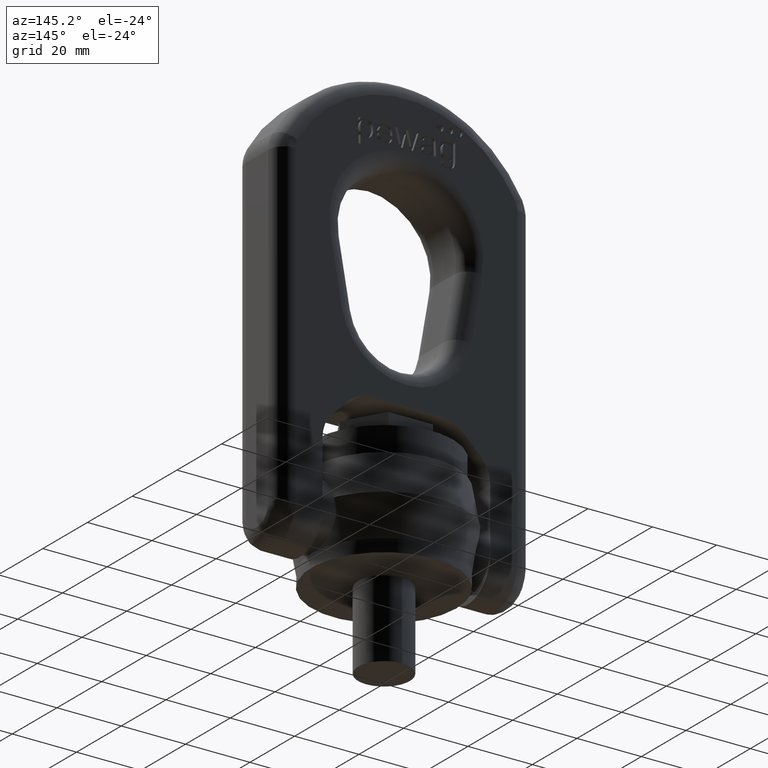
[diagram: clean part render]
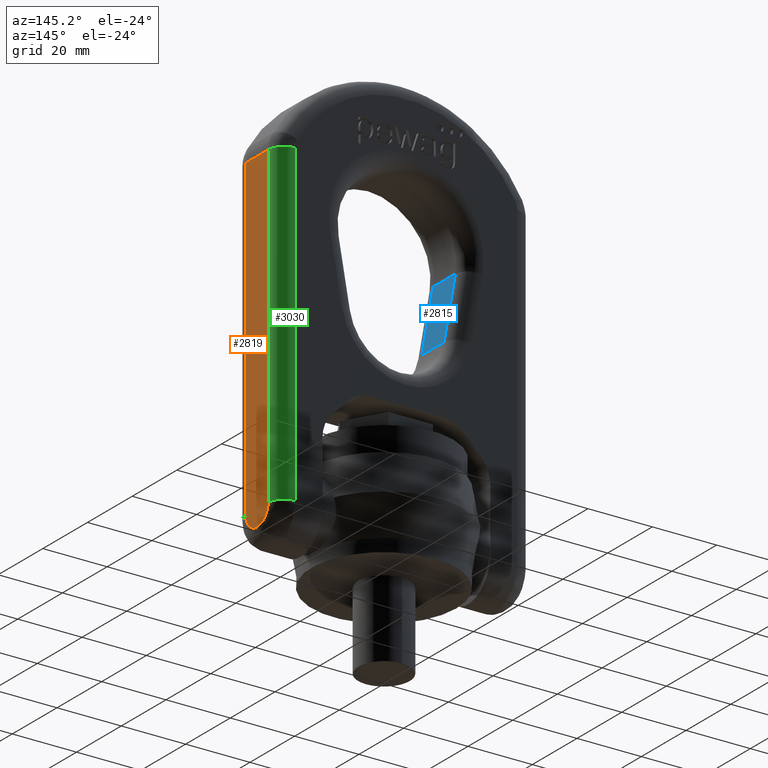
[diagram: same view with three faces highlighted in distinct colors, each labeled with its STEP entity id]
A machine part, auxiliary view with three faces highlighted in distinct colors.
Their STEP definitions:

[orange] entity #2819 — the highlighted planar face has unit normal (-1, 0, -0).
#1867=LINE('',#7754,#2175);
#1868=LINE('',#7756,#2176);
#1869=LINE('',#7758,#2177);
#2175=VECTOR('',#6354,1.);
#2176=VECTOR('',#6355,1.);
#2177=VECTOR('',#6356,1.);
#2459=FACE_OUTER_BOUND('',#3197,.T.);
#2690=PLANE('',#5903);
#2819=ADVANCED_FACE('',(#2459),#2690,.F.);
#3197=EDGE_LOOP('',(#3735,#3736,#3737,#3738));
#3735=ORIENTED_EDGE('',*,*,#5364,.T.);
#3736=ORIENTED_EDGE('',*,*,#5365,.T.);
#3737=ORIENTED_EDGE('',*,*,#5366,.T.);
#3738=ORIENTED_EDGE('',*,*,#5367,.T.);
#4923=VERTEX_POINT('',#7752);
#4924=VERTEX_POINT('',#7753);
#4925=VERTEX_POINT('',#7755);
#4926=VERTEX_POINT('',#7757);
#5364=EDGE_CURVE('',#4923,#4924,#5790,.T.);
#5365=EDGE_CURVE('',#4924,#4925,#1867,.T.);
#5366=EDGE_CURVE('',#4925,#4926,#1868,.T.);
#5367=EDGE_CURVE('',#4926,#4923,#1869,.T.);
#5790=CIRCLE('',#5902,4.99999999999995);
#5902=AXIS2_PLACEMENT_3D('',#7751,#6352,#6353);
#5903=AXIS2_PLACEMENT_3D('',#7759,#6357,#6358);
#6352=DIRECTION('',(1.,0.,1.87537673078574E-16));
#6353=DIRECTION('',(0.,0.,1.));
#6354=DIRECTION('',(-1.87537673078574E-16,4.39384026378438E-31,1.));
#6355=DIRECTION('',(0.,-1.,0.));
#6356=DIRECTION('',(1.87537673078574E-16,0.,-1.));
#6357=DIRECTION('',(-1.,0.,-1.87537673078574E-16));
#6358=DIRECTION('',(-1.87350135405495E-16,0.,1.));
#7751=CARTESIAN_POINT('',(39.5,-4.09636284105662E-14,12.));
#7752=CARTESIAN_POINT('',(39.5,-5.,12.));
#7753=CARTESIAN_POINT('',(39.5,4.99999999999991,12.));
#7754=CARTESIAN_POINT('',(39.5,4.99999999999992,110.597669259971));
#7755=CARTESIAN_POINT('',(39.5,4.99999999999992,110.597669259971));
#7756=CARTESIAN_POINT('',(39.5,-10.,110.597669259971));
#7757=CARTESIAN_POINT('',(39.5,-5.,110.597669259971));
#7758=CARTESIAN_POINT('',(39.5,-5.,12.));
#7759=CARTESIAN_POINT('',(39.5,-10.,2.));

[blue] entity #2815 — the highlighted planar face has unit normal (-0.9848, 0, -0.1736).
#1856=LINE('',#7721,#2164);
#1857=LINE('',#7724,#2165);
#1858=LINE('',#7726,#2166);
#1859=LINE('',#7728,#2167);
#2164=VECTOR('',#6327,1.);
#2165=VECTOR('',#6328,1.);
#2166=VECTOR('',#6329,1.);
#2167=VECTOR('',#6330,1.);
#2455=FACE_OUTER_BOUND('',#3193,.T.);
#2687=PLANE('',#5895);
#2815=ADVANCED_FACE('',(#2455),#2687,.F.);
#3193=EDGE_LOOP('',(#3719,#3720,#3721,#3722));
#3719=ORIENTED_EDGE('',*,*,#5350,.T.);
#3720=ORIENTED_EDGE('',*,*,#5351,.T.);
#3721=ORIENTED_EDGE('',*,*,#5352,.F.);
#3722=ORIENTED_EDGE('',*,*,#5353,.T.);
#4911=VERTEX_POINT('',#7722);
#4912=VERTEX_POINT('',#7723);
#4913=VERTEX_POINT('',#7725);
#4914=VERTEX_POINT('',#7727);
#5350=EDGE_CURVE('',#4911,#4912,#1856,.T.);
#5351=EDGE_CURVE('',#4912,#4913,#1857,.T.);
#5352=EDGE_CURVE('',#4914,#4913,#1858,.T.);
#5353=EDGE_CURVE('',#4914,#4911,#1859,.T.);
#5895=AXIS2_PLACEMENT_3D('',#7729,#6331,#6332);
#6327=DIRECTION('',(0.,1.,0.));
#6328=DIRECTION('',(-0.17364817766693,4.0684217855581E-16,0.984807753012208));
#6329=DIRECTION('',(0.,1.,0.));
#6330=DIRECTION('',(0.17364817766693,0.,-0.984807753012208));
#6331=DIRECTION('',(-0.984807753012208,0.,-0.17364817766693));
#6332=DIRECTION('',(-0.17364817766693,0.,0.984807753012208));
#7721=CARTESIAN_POINT('',(-15.1932680343379,-10.,70.7486656039905));
#7722=CARTESIAN_POINT('',(-15.1932680343379,-5.,70.7486656039905));
#7723=CARTESIAN_POINT('',(-15.1932680343379,5.00000000000005,70.7486656039905));
#7724=CARTESIAN_POINT('',(-18.711347307232,5.00000000000006,90.7006846243283));
#7725=CARTESIAN_POINT('',(-18.711347307232,5.00000000000006,90.7006846243283));
#7726=CARTESIAN_POINT('',(-18.711347307232,-10.,90.7006846243283));
#7727=CARTESIAN_POINT('',(-18.711347307232,-5.,90.7006846243283));
#7728=CARTESIAN_POINT('',(-15.1932680343379,-5.,70.7486656039905));
#7729=CARTESIAN_POINT('',(-15.1932680343379,-10.,70.7486656039905));

[green] entity #3030 — the highlighted cylindrical surface (edge-blend (fillet) strip) has radius 5 mm, axis along (-0, 0, 1).
#1817=LINE('',#7406,#2125);
#1867=LINE('',#7754,#2175);
#2125=VECTOR('',#6268,1.);
#2175=VECTOR('',#6354,1.);
#2655=FACE_OUTER_BOUND('',#3423,.T.);
#3030=ADVANCED_FACE('',(#2655),#3064,.T.);
#3064=CYLINDRICAL_SURFACE('',#6047,5.);
#3423=EDGE_LOOP('',(#4657,#4658,#4659,#4660));
#4657=ORIENTED_EDGE('',*,*,#5738,.T.);
#4658=ORIENTED_EDGE('',*,*,#5365,.F.);
#4659=ORIENTED_EDGE('',*,*,#5740,.F.);
#4660=ORIENTED_EDGE('',*,*,#5268,.F.);
#4741=VERTEX_POINT('',#7064);
#4832=VERTEX_POINT('',#7405);
#4924=VERTEX_POINT('',#7753);
#4925=VERTEX_POINT('',#7755);
#5268=EDGE_CURVE('',#4832,#4741,#1817,.T.);
#5365=EDGE_CURVE('',#4924,#4925,#1867,.T.);
#5738=EDGE_CURVE('',#4832,#4925,#5816,.T.);
#5740=EDGE_CURVE('',#4741,#4924,#5818,.T.);
#5816=CIRCLE('',#6043,5.);
#5818=CIRCLE('',#6046,5.);
#6043=AXIS2_PLACEMENT_3D('',#9792,#6894,#6895);
#6046=AXIS2_PLACEMENT_3D('',#9811,#6900,#6901);
#6047=AXIS2_PLACEMENT_3D('',#9812,#6902,#6903);
#6268=DIRECTION('',(1.87537673078574E-16,-4.39384026378438E-31,-1.));
#6354=DIRECTION('',(-1.87537673078574E-16,4.39384026378438E-31,1.));
#6894=DIRECTION('',(0.,0.,-1.));
#6895=DIRECTION('',(-1.,0.,0.));
#6900=DIRECTION('',(3.46944695195362E-16,-9.62964972193618E-31,-1.));
#6901=DIRECTION('',(-1.,0.,-3.46944695195361E-16));
#6902=DIRECTION('',(-1.87537673078574E-16,4.39384026378438E-31,1.));
#6903=DIRECTION('',(0.999999999999999,0.,0.));
#7064=CARTESIAN_POINT('',(34.5,9.99999999999992,12.));
#7405=CARTESIAN_POINT('',(34.5,9.99999999999992,110.597669259971));
#7406=CARTESIAN_POINT('',(34.5,9.99999999999992,12.));
#7753=CARTESIAN_POINT('',(39.5,4.99999999999991,12.));
#7754=CARTESIAN_POINT('',(39.5,4.99999999999992,110.597669259971));
#7755=CARTESIAN_POINT('',(39.5,4.99999999999992,110.597669259971));
#9792=CARTESIAN_POINT('',(34.5,4.99999999999992,110.597669259971));
#9811=CARTESIAN_POINT('',(34.5,4.99999999999992,12.));
#9812=CARTESIAN_POINT('',(34.5,4.99999999999992,94.295));